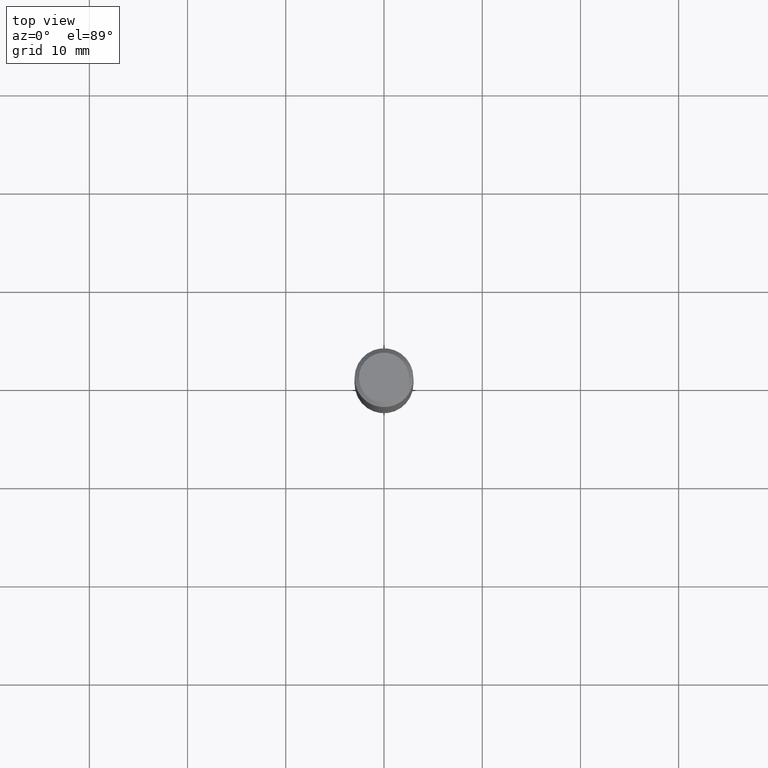
[diagram: clean part render]
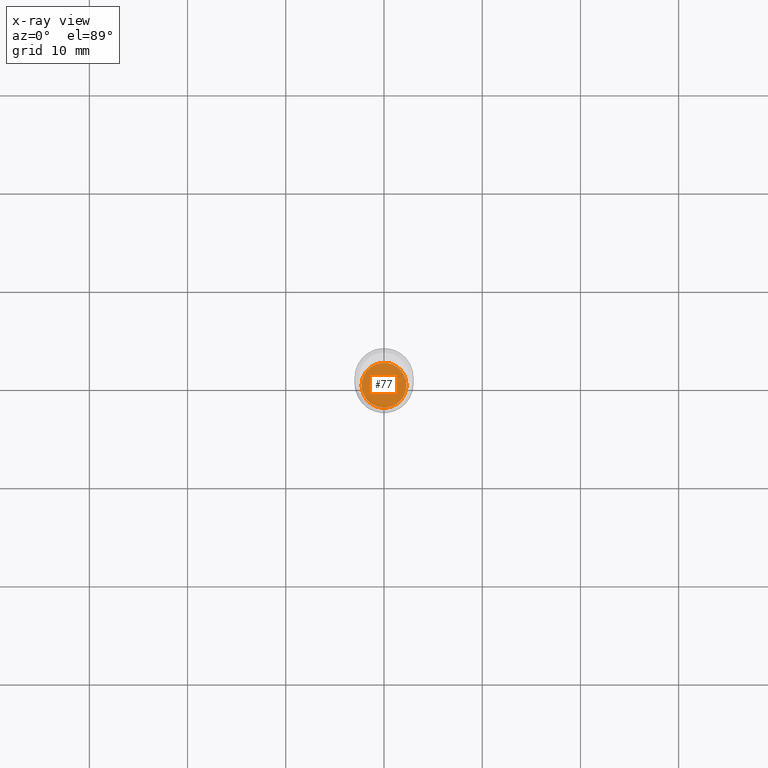
[diagram: x-ray — body ghosted, one internal face saturated and labeled with its STEP entity id]
A machine part, top view, then the same camera in x-ray: the body is ghosted and one INTERNAL B-rep face — a face not visible from any outside direction — is saturated and labeled: STEP entity #77.
In plain terms, the highlighted planar face has unit normal (-0, 0, 1).
Its self-contained STEP definition (entity closure, byte-faithful):
#8 = PLANE ( 'NONE',  #474 ) ;
#16 = EDGE_CURVE ( 'NONE', #187, #373, #175, .T. ) ;
#29 = EDGE_LOOP ( 'NONE', ( #59, #432 ) ) ;
#47 = DIRECTION ( 'NONE',  ( 1.000000000000000000, -6.982962677686265922E-15, 4.876176775795935793E-29 ) ) ;
#59 = ORIENTED_EDGE ( 'NONE', *, *, #362, .F. ) ;
#77 = ADVANCED_FACE ( 'NONE', ( #316 ), #8, .F. ) ;
#115 = CARTESIAN_POINT ( 'NONE',  ( -0.09005000000000000504, -5.541967934766781931E-15, -1.771299999999999653 ) ) ;
#159 = AXIS2_PLACEMENT_3D ( 'NONE', #465, #461, #193 ) ;
#166 = DIRECTION ( 'NONE',  ( 1.000000000000000000, -6.982962677686271444E-15, 0.000000000000000000 ) ) ;
#175 = CIRCLE ( 'NONE', #415, 0.09005000000000000504 ) ;
#187 = VERTEX_POINT ( 'NONE', #115 ) ;
#193 = DIRECTION ( 'NONE',  ( 1.000000000000000000, -6.982962677686271444E-15, 0.000000000000000000 ) ) ;
#242 = DIRECTION ( 'NONE',  ( -2.445468806185136597E-29, 3.491481338843145583E-15, 1.000000000000000000 ) ) ;
#265 = CIRCLE ( 'NONE', #159, 0.09005000000000000504 ) ;
#316 = FACE_OUTER_BOUND ( 'NONE', #29, .T. ) ;
#346 = CARTESIAN_POINT ( 'NONE',  ( 0.09005000000000000504, -6.813276684618512341E-15, -1.771299999999999653 ) ) ;
#362 = EDGE_CURVE ( 'NONE', #373, #187, #265, .T. ) ;
#365 = CARTESIAN_POINT ( 'NONE',  ( 4.331658896395732410E-29, -6.184460895492863090E-15, -1.771299999999999653 ) ) ;
#373 = VERTEX_POINT ( 'NONE', #346 ) ;
#395 = DIRECTION ( 'NONE',  ( -2.438088387897960049E-29, 3.491481338843145188E-15, 1.000000000000000000 ) ) ;
#415 = AXIS2_PLACEMENT_3D ( 'NONE', #441, #242, #166 ) ;
#432 = ORIENTED_EDGE ( 'NONE', *, *, #16, .F. ) ;
#441 = CARTESIAN_POINT ( 'NONE',  ( 4.331658896395732410E-29, -6.184460895492863090E-15, -1.771299999999999653 ) ) ;
#461 = DIRECTION ( 'NONE',  ( -2.445468806185136597E-29, 3.491481338843145583E-15, 1.000000000000000000 ) ) ;
#465 = CARTESIAN_POINT ( 'NONE',  ( 4.331658896395732410E-29, -6.184460895492863090E-15, -1.771299999999999653 ) ) ;
#474 = AXIS2_PLACEMENT_3D ( 'NONE', #365, #395, #47 ) ;